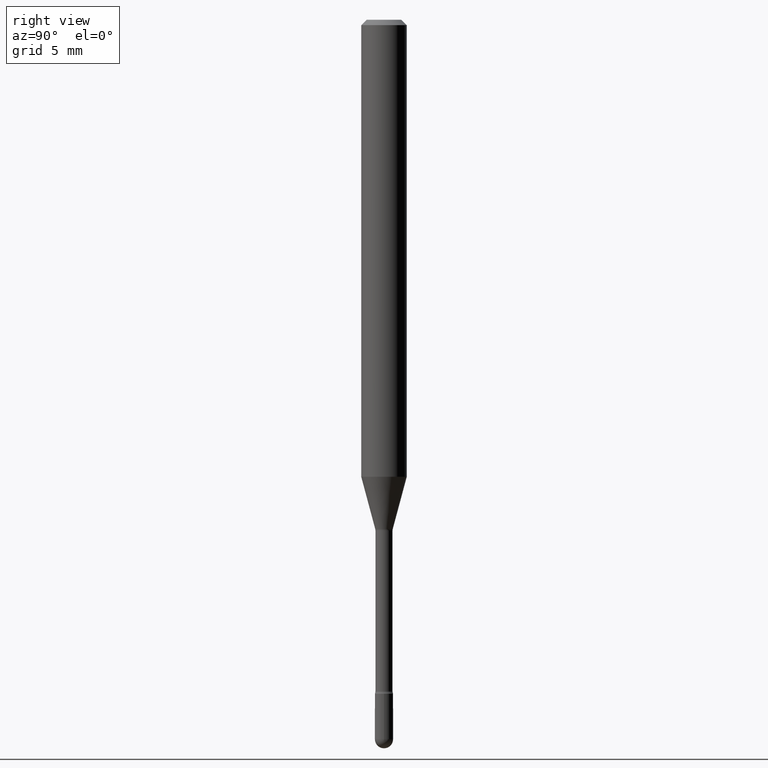
[diagram: clean part render]
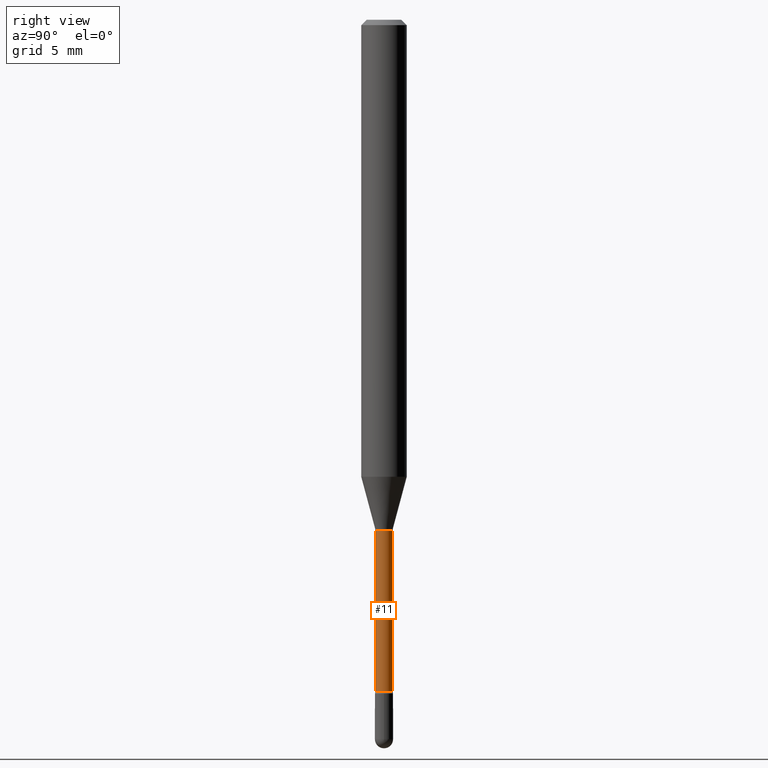
[diagram: same view with one face highlighted and labeled with its STEP entity id]
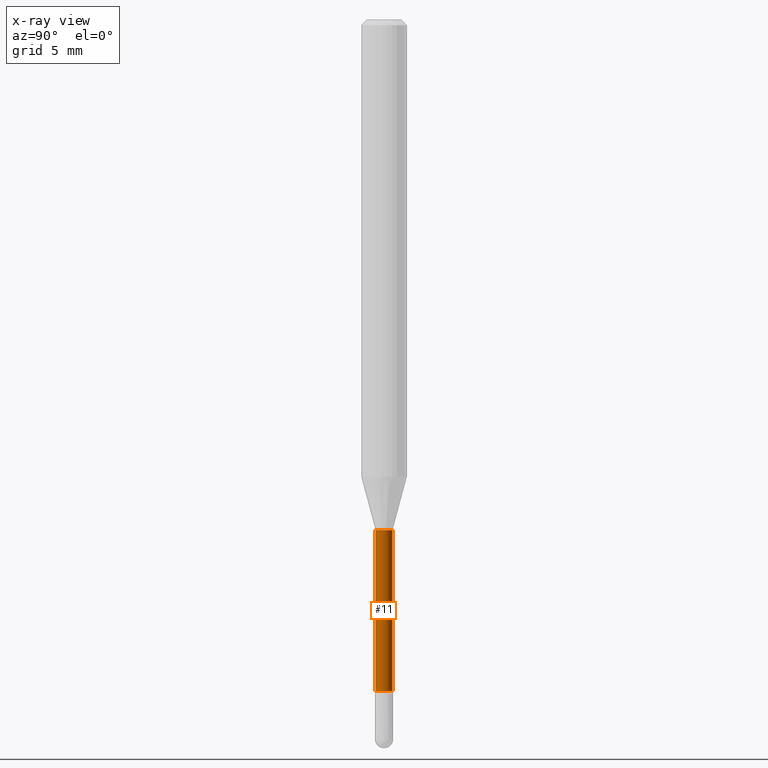
[diagram: x-ray of the same camera — body ghosted, the highlighted face saturated]
A machine part, right view. The second image highlights one B-rep face of the part: STEP entity #11.
The next image is the same camera in x-ray: the body ghosted, the highlighted face saturated — about 0% of this face is hidden behind the body in this view.
In plain terms, the highlighted cylindrical surface (edge-blend (fillet) strip) has radius 0.5969 mm, axis along (-0, 0, 1).
Its self-contained STEP definition (entity closure, byte-faithful):
#11 = ADVANCED_FACE ( 'NONE', ( #17 ), #188, .T. ) ;
#12 = DIRECTION ( 'NONE',  ( -2.445515165331157393E-29, 3.491414949907445282E-15, 1.000000000000000000 ) ) ;
#17 = FACE_OUTER_BOUND ( 'NONE', #251, .T. ) ;
#50 = CARTESIAN_POINT ( 'NONE',  ( 3.428550604154676765E-29, -4.894875732344463404E-15, -1.401974787463811101 ) ) ;
#68 = VECTOR ( 'NONE', #81, 39.37007874015748143 ) ;
#71 = VERTEX_POINT ( 'NONE', #197 ) ;
#74 = AXIS2_PLACEMENT_3D ( 'NONE', #175, #429, #276 ) ;
#81 = DIRECTION ( 'NONE',  ( -2.445515165331157393E-29, 3.491414949907444887E-15, 1.000000000000000000 ) ) ;
#93 = EDGE_CURVE ( 'NONE', #159, #449, #388, .T. ) ;
#98 = DIRECTION ( 'NONE',  ( -6.982962677686266711E-15, -1.000000000000000000, 0.000000000000000000 ) ) ;
#100 = EDGE_CURVE ( 'NONE', #368, #159, #190, .T. ) ;
#116 = AXIS2_PLACEMENT_3D ( 'NONE', #50, #528, #235 ) ;
#141 = CARTESIAN_POINT ( 'NONE',  ( 4.508213425656779262E-29, -6.436289569923853216E-15, -1.843461651584689109 ) ) ;
#158 = VECTOR ( 'NONE', #393, 39.37007874015748143 ) ;
#159 = VERTEX_POINT ( 'NONE', #303 ) ;
#175 = CARTESIAN_POINT ( 'NONE',  ( -1.169113584055446105E-44, 1.669184350826100908E-30, 4.780733988912460139E-16 ) ) ;
#182 = CARTESIAN_POINT ( 'NONE',  ( 1.669775429036687557E-16, 0.02349999999999509773, -1.401974787463811101 ) ) ;
#188 = CYLINDRICAL_SURFACE ( 'NONE', #74, 0.02350000000000003475 ) ;
#190 = LINE ( 'NONE', #404, #158 ) ;
#193 = ORIENTED_EDGE ( 'NONE', *, *, #100, .F. ) ;
#197 = CARTESIAN_POINT ( 'NONE',  ( 1.723066134218696351E-16, 0.02349999999999363709, -1.843461651584689109 ) ) ;
#213 = EDGE_CURVE ( 'NONE', #71, #449, #344, .T. ) ;
#224 = ORIENTED_EDGE ( 'NONE', *, *, #440, .T. ) ;
#235 = DIRECTION ( 'NONE',  ( -6.982962677686265922E-15, -1.000000000000000000, 0.000000000000000000 ) ) ;
#251 = EDGE_LOOP ( 'NONE', ( #224, #258, #385, #193 ) ) ;
#258 = ORIENTED_EDGE ( 'NONE', *, *, #213, .T. ) ;
#275 = CARTESIAN_POINT ( 'NONE',  ( -1.640996229255826813E-16, -0.02350000000000651221, -1.843461651584689109 ) ) ;
#276 = DIRECTION ( 'NONE',  ( -6.982962677686267499E-15, -1.000000000000000000, 3.491414949907446070E-15 ) ) ;
#303 = CARTESIAN_POINT ( 'NONE',  ( -1.640996229255929365E-16, -0.02350000000000488851, -1.401974787463811101 ) ) ;
#344 = LINE ( 'NONE', #515, #68 ) ;
#368 = VERTEX_POINT ( 'NONE', #275 ) ;
#372 = AXIS2_PLACEMENT_3D ( 'NONE', #141, #12, #98 ) ;
#385 = ORIENTED_EDGE ( 'NONE', *, *, #93, .F. ) ;
#388 = CIRCLE ( 'NONE', #116, 0.02349999999999999312 ) ;
#393 = DIRECTION ( 'NONE',  ( -2.445515165331157393E-29, 3.491414949907444887E-15, 1.000000000000000000 ) ) ;
#404 = CARTESIAN_POINT ( 'NONE',  ( -1.640996229256275231E-16, -0.02350000000000003475, 5.601216502140711297E-16 ) ) ;
#429 = DIRECTION ( 'NONE',  ( -2.445515165331157393E-29, 3.491414949907445282E-15, 1.000000000000000000 ) ) ;
#433 = CIRCLE ( 'NONE', #372, 0.02350000000000007291 ) ;
#440 = EDGE_CURVE ( 'NONE', #368, #71, #433, .T. ) ;
#449 = VERTEX_POINT ( 'NONE', #182 ) ;
#515 = CARTESIAN_POINT ( 'NONE',  ( 1.669775429036237659E-16, 0.02350000000000003475, 3.960251475684209475E-16 ) ) ;
#528 = DIRECTION ( 'NONE',  ( -2.445515165331157393E-29, 3.491414949907445282E-15, 1.000000000000000000 ) ) ;